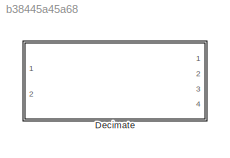
MODEL slx_b38445a45a68
KIND library
CONFIG AbsTol = auto
CONFIG EnableMultiTasking = off
CONFIG FixedStep = auto
CONFIG MaxStep = auto
CONFIG MinStep = auto
CONFIG RelTol = 1e-3
CONFIG SampleTimeConstraint = Unconstrained
CONFIG Solver = VariableStepAuto
CONFIG SolverName = VariableStepAuto
CONFIG StartTime = 0.0
CONFIG StopTime = 10.0
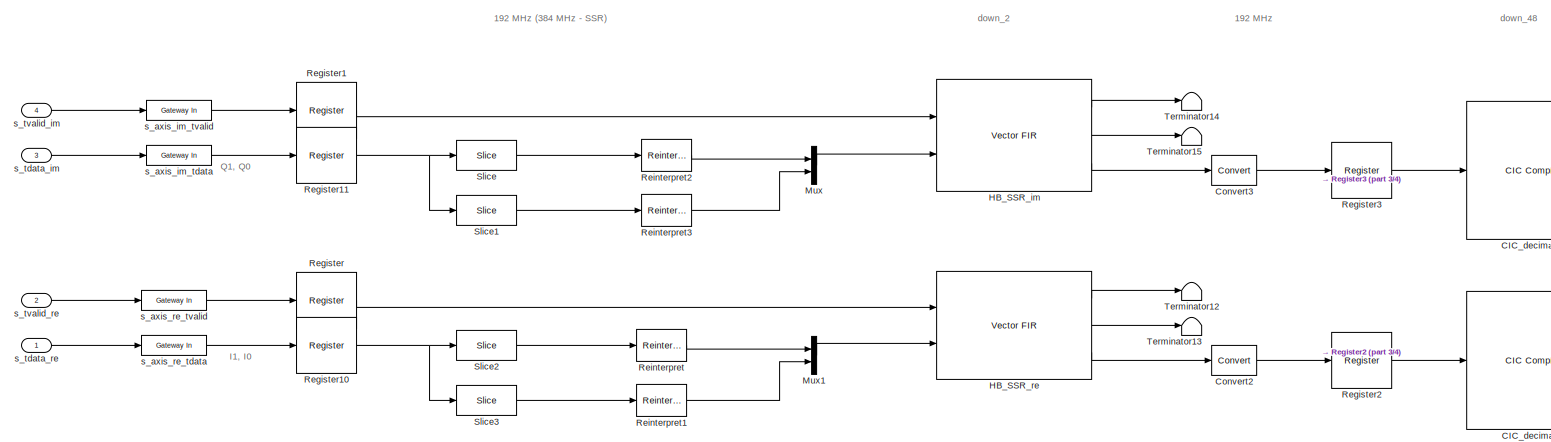
[diagram: Decimate - part 1/4, left side, full height]
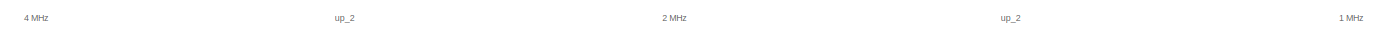
[diagram: Decimate - part 2/4, top center region]
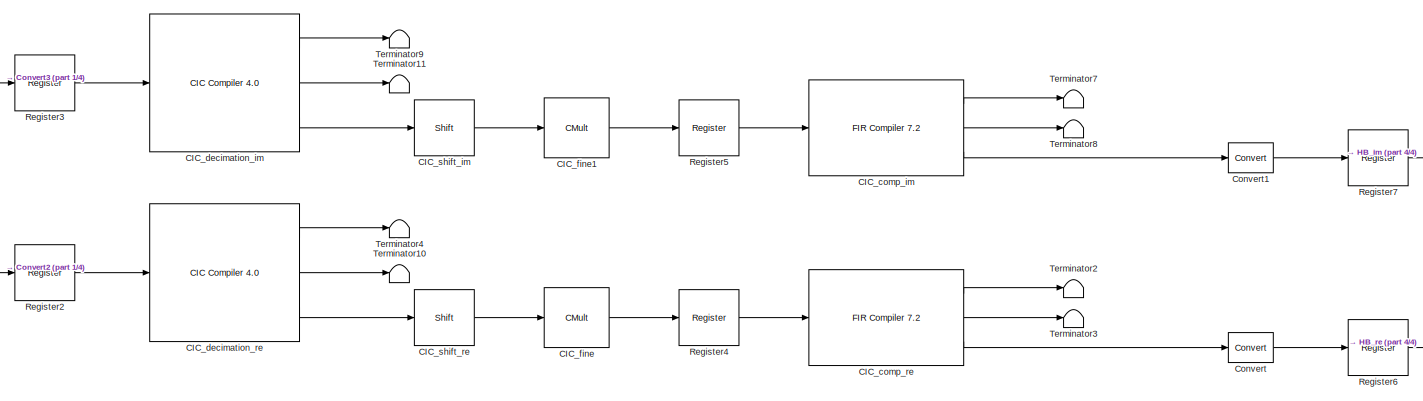
[diagram: Decimate - part 3/4, central region]
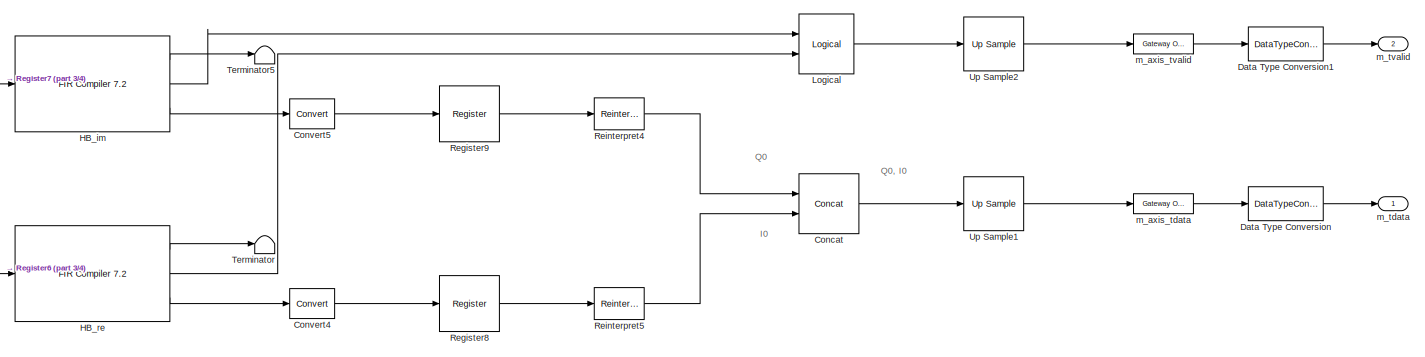
[diagram: Decimate - part 4/4, middle right region]
BLOCK [SubSystem] Decimate
  Ports = [4, 2]
  RequestExecContextInheritance = off
BLOCK [Reference] Decimate/CIC_comp_im  REF=xbsIndex_r4/FIR Compiler 7.2 
  Ports = [1, 3]
  SourceBlock = xbsIndex_r4/FIR Compiler 7.2
  SourceType = Xilinx FIR Compiler 7.2 Block
BLOCK [Reference] Decimate/CIC_comp_re  REF=xbsIndex_r4/FIR Compiler 7.2 
  Ports = [1, 3]
  SourceBlock = xbsIndex_r4/FIR Compiler 7.2
  SourceType = Xilinx FIR Compiler 7.2 Block
BLOCK [Reference] Decimate/CIC_decimation_im  REF=xbsIndex_r4/CIC Compiler 4.0 
  Ports = [1, 3]
  SourceBlock = xbsIndex_r4/CIC Compiler 4.0
  SourceType = Xilinx CIC Compiler 4.0 Block
BLOCK [Reference] Decimate/CIC_decimation_re  REF=xbsIndex_r4/CIC Compiler 4.0 
  Ports = [1, 3]
  SourceBlock = xbsIndex_r4/CIC Compiler 4.0
  SourceType = Xilinx CIC Compiler 4.0 Block
BLOCK [Reference] Decimate/CIC_fine  REF=xbsIndex_r4/CMult
  Ports = [1, 1]
  SourceBlock = xbsIndex_r4/CMult
  SourceType = Xilinx Constant Multiplier Block
BLOCK [Reference] Decimate/CIC_fine1  REF=xbsIndex_r4/CMult
  Ports = [1, 1]
  SourceBlock = xbsIndex_r4/CMult
  SourceType = Xilinx Constant Multiplier Block
BLOCK [Reference] Decimate/CIC_shift_im  REF=xbsIndex_r4/Shift
  Ports = [1, 1]
  SourceBlock = xbsIndex_r4/Shift
  SourceType = Xilinx Binary Shift Operator Block
BLOCK [Reference] Decimate/CIC_shift_re  REF=xbsIndex_r4/Shift
  Ports = [1, 1]
  SourceBlock = xbsIndex_r4/Shift
  SourceType = Xilinx Binary Shift Operator Block
BLOCK [Reference] Decimate/Concat  REF=xbsIndex_r4/Concat
  Ports = [2, 1]
  SourceBlock = xbsIndex_r4/Concat
  SourceType = Xilinx Bus Concatenator Block
BLOCK [Reference] Decimate/Convert  REF=xbsIndex_r4/Convert
  Ports = [1, 1]
  SourceBlock = xbsIndex_r4/Convert
  SourceType = Xilinx Type Converter Block
BLOCK [Reference] Decimate/Convert1  REF=xbsIndex_r4/Convert
  Ports = [1, 1]
  SourceBlock = xbsIndex_r4/Convert
  SourceType = Xilinx Type Converter Block
BLOCK [Reference] Decimate/Convert2  REF=xbsIndex_r4/Convert
  Ports = [1, 1]
  SourceBlock = xbsIndex_r4/Convert
  SourceType = Xilinx Type Converter Block
BLOCK [Reference] Decimate/Convert3  REF=xbsIndex_r4/Convert
  Ports = [1, 1]
  SourceBlock = xbsIndex_r4/Convert
  SourceType = Xilinx Type Converter Block
BLOCK [Reference] Decimate/Convert4  REF=xbsIndex_r4/Convert
  Ports = [1, 1]
  SourceBlock = xbsIndex_r4/Convert
  SourceType = Xilinx Type Converter Block
BLOCK [Reference] Decimate/Convert5  REF=xbsIndex_r4/Convert
  Ports = [1, 1]
  SourceBlock = xbsIndex_r4/Convert
  SourceType = Xilinx Type Converter Block
BLOCK [DataTypeConversion] Decimate/Data Type Conversion
  ConvertRealWorld = Stored Integer (SI)
  OutDataTypeStr = uint32
  RndMeth = Floor
  SaturateOnIntegerOverflow = off
BLOCK [DataTypeConversion] Decimate/Data Type Conversion1
  ConvertRealWorld = Stored Integer (SI)
  OutDataTypeStr = boolean
  RndMeth = Floor
  SaturateOnIntegerOverflow = off
BLOCK [Reference] Decimate/HB_SSR_im  REF=xrbsSSR_Library/Vector FIR
  Ports = [2, 3]
  SourceBlock = xrbsSSR_Library/Vector FIR
  SourceProductName = Xilinx SSR Blockset
  SourceType = Xilinx Vector FIR Compiler 7.2 Block
BLOCK [Reference] Decimate/HB_SSR_re  REF=xrbsSSR_Library/Vector FIR
  Ports = [2, 3]
  SourceBlock = xrbsSSR_Library/Vector FIR
  SourceProductName = Xilinx SSR Blockset
  SourceType = Xilinx Vector FIR Compiler 7.2 Block
BLOCK [Reference] Decimate/HB_im  REF=xbsIndex_r4/FIR Compiler 7.2 
  Ports = [1, 3]
  SourceBlock = xbsIndex_r4/FIR Compiler 7.2
  SourceType = Xilinx FIR Compiler 7.2 Block
BLOCK [Reference] Decimate/HB_re  REF=xbsIndex_r4/FIR Compiler 7.2 
  Ports = [1, 3]
  SourceBlock = xbsIndex_r4/FIR Compiler 7.2
  SourceType = Xilinx FIR Compiler 7.2 Block
BLOCK [Reference] Decimate/Logical  REF=xbsIndex_r4/Logical
  Ports = [2, 1]
  SourceBlock = xbsIndex_r4/Logical
  SourceType = Xilinx Logical Block Block
BLOCK [Mux] Decimate/Mux
  DisplayOption = bar
  Inputs = 2
  Ports = [2, 1]
BLOCK [Mux] Decimate/Mux1
  DisplayOption = bar
  Inputs = 2
  Ports = [2, 1]
BLOCK [Reference] Decimate/Register  REF=xbsIndex_r4/Register
  Ports = [1, 1]
  SourceBlock = xbsIndex_r4/Register
  SourceType = Xilinx Register Block
BLOCK [Reference] Decimate/Register1  REF=xbsIndex_r4/Register
  Ports = [1, 1]
  SourceBlock = xbsIndex_r4/Register
  SourceType = Xilinx Register Block
BLOCK [Reference] Decimate/Register10  REF=xbsIndex_r4/Register
  Ports = [1, 1]
  SourceBlock = xbsIndex_r4/Register
  SourceType = Xilinx Register Block
BLOCK [Reference] Decimate/Register11  REF=xbsIndex_r4/Register
  Ports = [1, 1]
  SourceBlock = xbsIndex_r4/Register
  SourceType = Xilinx Register Block
BLOCK [Reference] Decimate/Register2  REF=xbsIndex_r4/Register
  Ports = [1, 1]
  SourceBlock = xbsIndex_r4/Register
  SourceType = Xilinx Register Block
BLOCK [Reference] Decimate/Register3  REF=xbsIndex_r4/Register
  Ports = [1, 1]
  SourceBlock = xbsIndex_r4/Register
  SourceType = Xilinx Register Block
BLOCK [Reference] Decimate/Register4  REF=xbsIndex_r4/Register
  Ports = [1, 1]
  SourceBlock = xbsIndex_r4/Register
  SourceType = Xilinx Register Block
BLOCK [Reference] Decimate/Register5  REF=xbsIndex_r4/Register
  Ports = [1, 1]
  SourceBlock = xbsIndex_r4/Register
  SourceType = Xilinx Register Block
BLOCK [Reference] Decimate/Register6  REF=xbsIndex_r4/Register
  Ports = [1, 1]
  SourceBlock = xbsIndex_r4/Register
  SourceType = Xilinx Register Block
BLOCK [Reference] Decimate/Register7  REF=xbsIndex_r4/Register
  Ports = [1, 1]
  SourceBlock = xbsIndex_r4/Register
  SourceType = Xilinx Register Block
BLOCK [Reference] Decimate/Register8  REF=xbsIndex_r4/Register
  Ports = [1, 1]
  SourceBlock = xbsIndex_r4/Register
  SourceType = Xilinx Register Block
BLOCK [Reference] Decimate/Register9  REF=xbsIndex_r4/Register
  Ports = [1, 1]
  SourceBlock = xbsIndex_r4/Register
  SourceType = Xilinx Register Block
BLOCK [Reference] Decimate/Reinterpret  REF=xbsIndex_r4/Reinterpret
  Ports = [1, 1]
  SourceBlock = xbsIndex_r4/Reinterpret
  SourceType = Xilinx Type Reinterpreter Block
BLOCK [Reference] Decimate/Reinterpret1  REF=xbsIndex_r4/Reinterpret
  Ports = [1, 1]
  SourceBlock = xbsIndex_r4/Reinterpret
  SourceType = Xilinx Type Reinterpreter Block
BLOCK [Reference] Decimate/Reinterpret2  REF=xbsIndex_r4/Reinterpret
  Ports = [1, 1]
  SourceBlock = xbsIndex_r4/Reinterpret
  SourceType = Xilinx Type Reinterpreter Block
BLOCK [Reference] Decimate/Reinterpret3  REF=xbsIndex_r4/Reinterpret
  Ports = [1, 1]
  SourceBlock = xbsIndex_r4/Reinterpret
  SourceType = Xilinx Type Reinterpreter Block
BLOCK [Reference] Decimate/Reinterpret4  REF=xbsIndex_r4/Reinterpret
  Ports = [1, 1]
  SourceBlock = xbsIndex_r4/Reinterpret
  SourceType = Xilinx Type Reinterpreter Block
BLOCK [Reference] Decimate/Reinterpret5  REF=xbsIndex_r4/Reinterpret
  Ports = [1, 1]
  SourceBlock = xbsIndex_r4/Reinterpret
  SourceType = Xilinx Type Reinterpreter Block
BLOCK [Reference] Decimate/Slice  REF=xbsIndex_r4/Slice
  Ports = [1, 1]
  SourceBlock = xbsIndex_r4/Slice
  SourceType = Xilinx Bit Slice Extractor Block
BLOCK [Reference] Decimate/Slice1  REF=xbsIndex_r4/Slice
  Ports = [1, 1]
  SourceBlock = xbsIndex_r4/Slice
  SourceType = Xilinx Bit Slice Extractor Block
BLOCK [Reference] Decimate/Slice2  REF=xbsIndex_r4/Slice
  Ports = [1, 1]
  SourceBlock = xbsIndex_r4/Slice
  SourceType = Xilinx Bit Slice Extractor Block
BLOCK [Reference] Decimate/Slice3  REF=xbsIndex_r4/Slice
  Ports = [1, 1]
  SourceBlock = xbsIndex_r4/Slice
  SourceType = Xilinx Bit Slice Extractor Block
BLOCK [Terminator] Decimate/Terminator
BLOCK [Terminator] Decimate/Terminator10
BLOCK [Terminator] Decimate/Terminator11
BLOCK [Terminator] Decimate/Terminator12
BLOCK [Terminator] Decimate/Terminator13
BLOCK [Terminator] Decimate/Terminator14
BLOCK [Terminator] Decimate/Terminator15
BLOCK [Terminator] Decimate/Terminator2
BLOCK [Terminator] Decimate/Terminator3
BLOCK [Terminator] Decimate/Terminator4
BLOCK [Terminator] Decimate/Terminator5
BLOCK [Terminator] Decimate/Terminator7
BLOCK [Terminator] Decimate/Terminator8
BLOCK [Terminator] Decimate/Terminator9
BLOCK [Reference] Decimate/Up Sample1  REF=xbsIndex_r4/Up Sample
  Ports = [1, 1]
  SourceBlock = xbsIndex_r4/Up Sample
  SourceType = Xilinx Up Sampler Block
BLOCK [Reference] Decimate/Up Sample2  REF=xbsIndex_r4/Up Sample
  Ports = [1, 1]
  SourceBlock = xbsIndex_r4/Up Sample
  SourceType = Xilinx Up Sampler Block
BLOCK [Reference] Decimate/m_axis_tdata  REF=xbsIndex_r4/Gateway Out
  Ports = [1, 1]
  SourceBlock = xbsIndex_r4/Gateway Out
  SourceType = Xilinx Gateway Out Block
BLOCK [Reference] Decimate/m_axis_tvalid  REF=xbsIndex_r4/Gateway Out
  Ports = [1, 1]
  SourceBlock = xbsIndex_r4/Gateway Out
  SourceType = Xilinx Gateway Out Block
BLOCK [Outport] Decimate/m_tdata
BLOCK [Outport] Decimate/m_tvalid
  Port = 2
BLOCK [Reference] Decimate/s_axis_im_tdata  REF=xbsIndex_r4/Gateway In
  Ports = [1, 1]
  SourceBlock = xbsIndex_r4/Gateway In
  SourceType = Xilinx Gateway In Block
BLOCK [Reference] Decimate/s_axis_im_tvalid  REF=xbsIndex_r4/Gateway In
  Ports = [1, 1]
  SourceBlock = xbsIndex_r4/Gateway In
  SourceType = Xilinx Gateway In Block
BLOCK [Reference] Decimate/s_axis_re_tdata  REF=xbsIndex_r4/Gateway In
  Ports = [1, 1]
  SourceBlock = xbsIndex_r4/Gateway In
  SourceType = Xilinx Gateway In Block
BLOCK [Reference] Decimate/s_axis_re_tvalid  REF=xbsIndex_r4/Gateway In
  Ports = [1, 1]
  SourceBlock = xbsIndex_r4/Gateway In
  SourceType = Xilinx Gateway In Block
BLOCK [Inport] Decimate/s_tdata_im
  Port = 3
BLOCK [Inport] Decimate/s_tdata_re
BLOCK [Inport] Decimate/s_tvalid_im
  Port = 4
BLOCK [Inport] Decimate/s_tvalid_re
  Port = 2
ANNOTATION Decimate: 1 MHz
ANNOTATION Decimate: 192 MHz
ANNOTATION Decimate: 192 MHz (384 MHz - SSR)
ANNOTATION Decimate: 2 MHz
ANNOTATION Decimate: 4 MHz
ANNOTATION Decimate: up_2
ANNOTATION Decimate: down_2
ANNOTATION Decimate: down_48
ANNOTATION Decimate: I0
ANNOTATION Decimate: I1, I0
ANNOTATION Decimate: Q0
ANNOTATION Decimate: Q0, I0
ANNOTATION Decimate: Q1, Q0
LINE Decimate/CIC_comp_im:1 -> Decimate/Terminator7:1
LINE Decimate/CIC_comp_im:2 -> Decimate/Terminator8:1
LINE Decimate/CIC_comp_im:3 -> Decimate/Convert1:1
LINE Decimate/CIC_comp_re:1 -> Decimate/Terminator2:1
LINE Decimate/CIC_comp_re:2 -> Decimate/Terminator3:1
LINE Decimate/CIC_comp_re:3 -> Decimate/Convert:1
LINE Decimate/CIC_decimation_im:1 -> Decimate/Terminator9:1
LINE Decimate/CIC_decimation_im:2 -> Decimate/Terminator11:1
LINE Decimate/CIC_decimation_im:3 -> Decimate/CIC_shift_im:1
LINE Decimate/CIC_decimation_re:1 -> Decimate/Terminator4:1
LINE Decimate/CIC_decimation_re:2 -> Decimate/Terminator10:1
LINE Decimate/CIC_decimation_re:3 -> Decimate/CIC_shift_re:1
LINE Decimate/CIC_fine1:1 -> Decimate/Register5:1
LINE Decimate/CIC_fine:1 -> Decimate/Register4:1
LINE Decimate/CIC_shift_im:1 -> Decimate/CIC_fine1:1
LINE Decimate/CIC_shift_re:1 -> Decimate/CIC_fine:1
LINE Decimate/Concat:1 -> Decimate/Up Sample1:1
LINE Decimate/Convert1:1 -> Decimate/Register7:1
LINE Decimate/Convert2:1 -> Decimate/Register2:1
LINE Decimate/Convert3:1 -> Decimate/Register3:1
LINE Decimate/Convert4:1 -> Decimate/Register8:1
LINE Decimate/Convert5:1 -> Decimate/Register9:1
LINE Decimate/Convert:1 -> Decimate/Register6:1
LINE Decimate/Data Type Conversion1:1 -> Decimate/m_tvalid:1
LINE Decimate/Data Type Conversion:1 -> Decimate/m_tdata:1
LINE Decimate/HB_SSR_im:1 -> Decimate/Terminator14:1
LINE Decimate/HB_SSR_im:2 -> Decimate/Terminator15:1
LINE Decimate/HB_SSR_im:3 -> Decimate/Convert3:1
LINE Decimate/HB_SSR_re:1 -> Decimate/Terminator12:1
LINE Decimate/HB_SSR_re:2 -> Decimate/Terminator13:1
LINE Decimate/HB_SSR_re:3 -> Decimate/Convert2:1
LINE Decimate/HB_im:1 -> Decimate/Terminator5:1
LINE Decimate/HB_im:2 -> Decimate/Logical:1
LINE Decimate/HB_im:3 -> Decimate/Convert5:1
LINE Decimate/HB_re:1 -> Decimate/Terminator:1
LINE Decimate/HB_re:2 -> Decimate/Logical:2
LINE Decimate/HB_re:3 -> Decimate/Convert4:1
LINE Decimate/Logical:1 -> Decimate/Up Sample2:1
LINE Decimate/Mux1:1 -> Decimate/HB_SSR_re:2
LINE Decimate/Mux:1 -> Decimate/HB_SSR_im:2
NET Decimate/Register10:1 -> Decimate/Slice2:1, Decimate/Slice3:1
NET Decimate/Register11:1 -> Decimate/Slice1:1, Decimate/Slice:1
LINE Decimate/Register1:1 -> Decimate/HB_SSR_im:1
LINE Decimate/Register2:1 -> Decimate/CIC_decimation_re:1
LINE Decimate/Register3:1 -> Decimate/CIC_decimation_im:1
LINE Decimate/Register4:1 -> Decimate/CIC_comp_re:1
LINE Decimate/Register5:1 -> Decimate/CIC_comp_im:1
LINE Decimate/Register6:1 -> Decimate/HB_re:1
LINE Decimate/Register7:1 -> Decimate/HB_im:1
LINE Decimate/Register8:1 -> Decimate/Reinterpret5:1
LINE Decimate/Register9:1 -> Decimate/Reinterpret4:1
LINE Decimate/Register:1 -> Decimate/HB_SSR_re:1
LINE Decimate/Reinterpret1:1 -> Decimate/Mux1:2
LINE Decimate/Reinterpret2:1 -> Decimate/Mux:1
LINE Decimate/Reinterpret3:1 -> Decimate/Mux:2
LINE Decimate/Reinterpret4:1 -> Decimate/Concat:1
LINE Decimate/Reinterpret5:1 -> Decimate/Concat:2
LINE Decimate/Reinterpret:1 -> Decimate/Mux1:1
LINE Decimate/Slice1:1 -> Decimate/Reinterpret3:1
LINE Decimate/Slice2:1 -> Decimate/Reinterpret:1
LINE Decimate/Slice3:1 -> Decimate/Reinterpret1:1
LINE Decimate/Slice:1 -> Decimate/Reinterpret2:1
LINE Decimate/Up Sample1:1 -> Decimate/m_axis_tdata:1
LINE Decimate/Up Sample2:1 -> Decimate/m_axis_tvalid:1
LINE Decimate/m_axis_tdata:1 -> Decimate/Data Type Conversion:1
LINE Decimate/m_axis_tvalid:1 -> Decimate/Data Type Conversion1:1
LINE Decimate/s_axis_im_tdata:1 -> Decimate/Register11:1
LINE Decimate/s_axis_im_tvalid:1 -> Decimate/Register1:1
LINE Decimate/s_axis_re_tdata:1 -> Decimate/Register10:1
LINE Decimate/s_axis_re_tvalid:1 -> Decimate/Register:1
LINE Decimate/s_tdata_im:1 -> Decimate/s_axis_im_tdata:1
LINE Decimate/s_tdata_re:1 -> Decimate/s_axis_re_tdata:1
LINE Decimate/s_tvalid_im:1 -> Decimate/s_axis_im_tvalid:1
LINE Decimate/s_tvalid_re:1 -> Decimate/s_axis_re_tvalid:1
note: NET lines group one-source signal fan-out (src -> all destinations, sorted); 1:1 wires keep LINE
